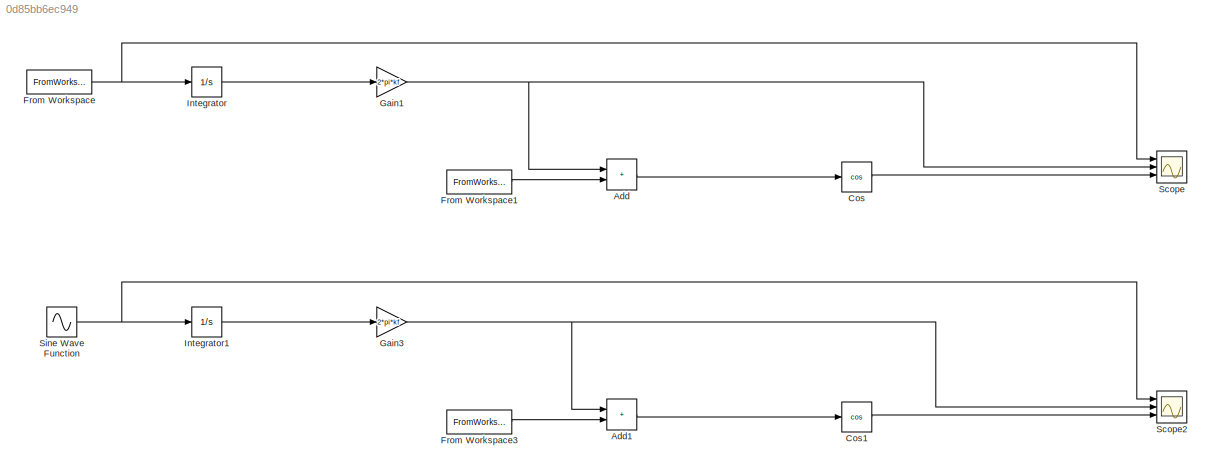
MODEL slx_0d85bb6ec949
KIND model
CONFIG AbsTol = auto
CONFIG EnableMultiTasking = off
CONFIG FixedStep = 0.001
CONFIG MaxStep = 0.000002
CONFIG MinStep = 0.000001
CONFIG RelTol = 1e-3
CONFIG SampleTimeConstraint = Unconstrained
CONFIG SolverName = VariableStepAuto
CONFIG StartTime = 0.0
CONFIG StopTime = 0.002
BLOCK [Sum] Add
  IconShape = rectangular
  Ports = [2, 1]
BLOCK [Sum] Add1
  IconShape = rectangular
  Ports = [2, 1]
BLOCK [Trigonometry] Cos
  Operator = cos
  Ports = [1, 1]
BLOCK [Trigonometry] Cos1
  Operator = cos
  Ports = [1, 1]
BLOCK [FromWorkspace] From Workspace
  VariableName = simin
BLOCK [FromWorkspace] From Workspace1
  VariableName = simfreq
BLOCK [FromWorkspace] From Workspace3
  VariableName = simfreq
BLOCK [Gain] Gain1
  Gain = 2*pi*kf
BLOCK [Gain] Gain3
  Gain = 2*pi*kf
BLOCK [Integrator] Integrator
  Ports = [1, 1]
BLOCK [Integrator] Integrator1
  Ports = [1, 1]
BLOCK [Scope] Scope
  Floating = off
  NumInputPorts = 3
  Ports = [3]
  ScopeSpecificationString = Simulink.scopes.TimeScopeBlockCfg('CurrentConfiguration', extmgr.ConfigurationSet(extmgr.Configuration('Core','General UI',true),extmgr.Configuration('Core','Source UI',true),extmgr.Configuration('Sources','WiredSimulink',true),extmgr.Configuration('Visuals','Time Domain',true,'SerializedDisplays',{struct('MinYLimReal','-8.92244','MaxYLimReal','2.10249','YLabelReal','','MinYLimMag','0.00000','MaxY...<+1418ch>
BLOCK [Scope] Scope2
  Floating = off
  NumInputPorts = 3
  Ports = [3]
  ScopeSpecificationString = Simulink.scopes.TimeScopeBlockCfg('CurrentConfiguration', extmgr.ConfigurationSet(extmgr.Configuration('Core','General UI',true),extmgr.Configuration('Core','Source UI',true),extmgr.Configuration('Sources','WiredSimulink',true,'DataLoggingVariableName','ScopeData1'),extmgr.Configuration('Visuals','Time Domain',true,'SerializedDisplays',{struct('MinYLimReal','-2.62487','MaxYLimReal','8.62499','YLab...<+1462ch>
BLOCK [Sin] Sine Wave Function
  Amplitude = 1.5
  Frequency = 2*pi*2000
  Ports = [0, 1]
  SampleTime = 0
LINE Add1:1 -> Cos1:1
LINE Add:1 -> Cos:1
LINE Cos1:1 -> Scope2:3
LINE Cos:1 -> Scope:3
LINE From Workspace1:1 -> Add:2
LINE From Workspace3:1 -> Add1:2
NET From Workspace:1 -> Integrator:1, Scope:1
NET Gain1:1 -> Add:1, Scope:2
NET Gain3:1 -> Add1:1, Scope2:2
LINE Integrator1:1 -> Gain3:1
LINE Integrator:1 -> Gain1:1
NET Sine Wave Function:1 -> Integrator1:1, Scope2:1
note: NET lines group one-source signal fan-out (src -> all destinations, sorted); 1:1 wires keep LINE
